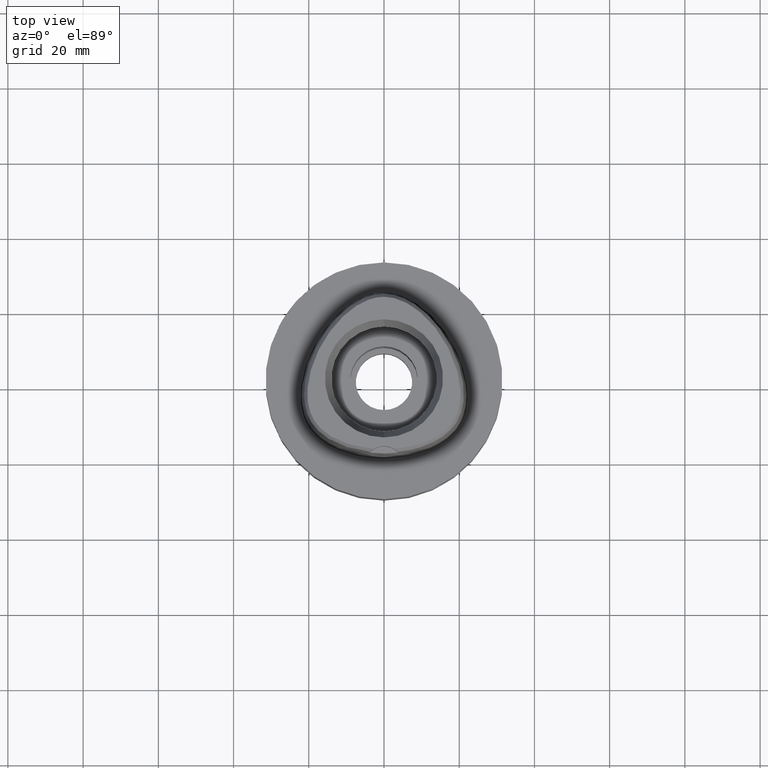
[diagram: clean part render]
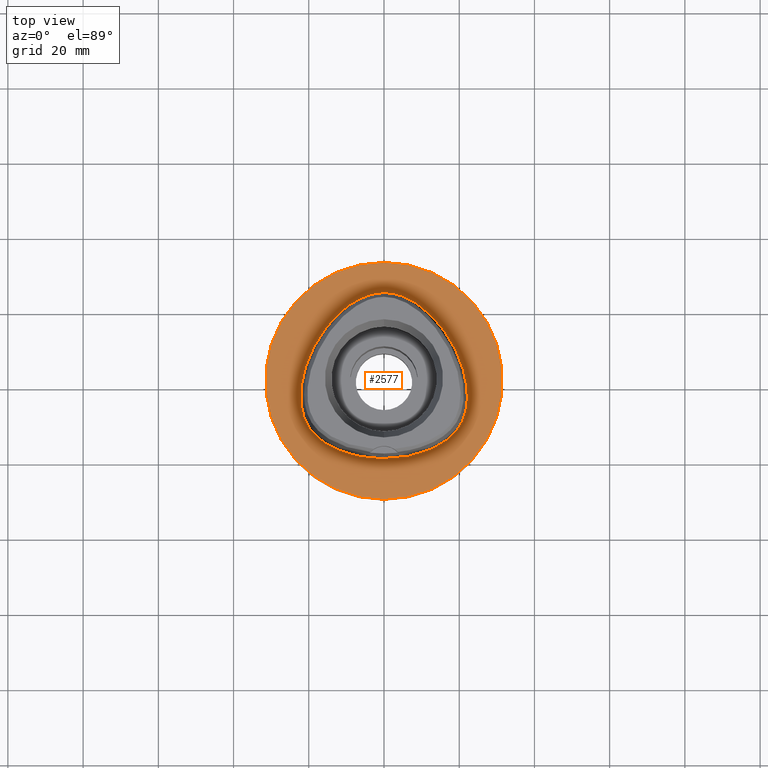
[diagram: same view with one face highlighted and labeled with its STEP entity id]
A machine part, top view. The second image highlights one B-rep face of the part: STEP entity #2577.
In plain terms, the highlighted planar face has unit normal (0, 0, -1).
Its self-contained STEP definition (entity closure, byte-faithful):
#55 = CARTESIAN_POINT ( 'NONE',  ( 0.0000000000000000000, 1.302411870892999789E-14, 0.0000000000000000000 ) ) ;
#181 = CARTESIAN_POINT ( 'NONE',  ( 18.06826692884347096, 10.43171877515928614, -2.002729590510916174E-06 ) ) ;
#318 = CARTESIAN_POINT ( 'NONE',  ( -14.40795638533398559, 15.64093749640449715, 2.214068054329915158E-07 ) ) ;
#375 = CARTESIAN_POINT ( 'NONE',  ( -19.64947365415650538, -12.82525390299093537, 2.214068054329915158E-07 ) ) ;
#428 = DIRECTION ( 'NONE',  ( 0.0000000000000000000, -1.000000000000000000, 0.0000000000000000000 ) ) ;
#458 = VERTEX_POINT ( 'NONE', #1910 ) ;
#468 = CARTESIAN_POINT ( 'NONE',  ( -11.23259756537737530, -18.89324218226976626, 2.214068054329915158E-07 ) ) ;
#575 = CARTESIAN_POINT ( 'NONE',  ( 0.8548392458561070439, 23.47500005007368173, -2.002729590510916174E-06 ) ) ;
#605 = CARTESIAN_POINT ( 'NONE',  ( 19.64947369920874110, -12.82525393574107220, -2.002729590510916174E-06 ) ) ;
#663 = CARTESIAN_POINT ( 'NONE',  ( 4.563152410477000099E-11, 23.47499999999000053, 5.514107688971999147E-14 ) ) ;
#676 = EDGE_CURVE ( 'NONE', #1625, #458, #3446, .T. ) ;
#718 = CARTESIAN_POINT ( 'NONE',  ( -2.564517725819225991, 23.29328124455137683, 2.214068054329915158E-07 ) ) ;
#781 = CARTESIAN_POINT ( 'NONE',  ( -20.74942740356179272, 4.657187498112564938, 2.214068054329915158E-07 ) ) ;
#863 = AXIS2_PLACEMENT_3D ( 'NONE', #5209, #2162, #428 ) ;
#1004 = FACE_OUTER_BOUND ( 'NONE', #4059, .T. ) ;
#1079 = CARTESIAN_POINT ( 'NONE',  ( 21.97832652744225612, -0.2810937412406172009, -2.002729590510916174E-06 ) ) ;
#1192 = CARTESIAN_POINT ( 'NONE',  ( -0.8548392419114434482, 23.47499999446841912, 2.214068054329915158E-07 ) ) ;
#1328 = VERTEX_POINT ( 'NONE', #4364 ) ;
#1416 = CARTESIAN_POINT ( 'NONE',  ( 6.341471028108053076, -20.29812504956459307, -2.002729590510916598E-06 ) ) ;
#1441 = CARTESIAN_POINT ( 'NONE',  ( 7.571159459716524154, 21.31457035584049464, -2.002729590510916174E-06 ) ) ;
#1464 = CARTESIAN_POINT ( 'NONE',  ( -7.554098525921001644E-12, -20.67499999999999716, 5.806466418789999109E-14 ) ) ;
#1490 = EDGE_LOOP ( 'NONE', ( #1591, #5205 ) ) ;
#1491 = CARTESIAN_POINT ( 'NONE',  ( -7.554098525921001644E-12, -20.67499999999999716, 5.806466418789999109E-14 ) ) ;
#1591 = ORIENTED_EDGE ( 'NONE', *, *, #2984, .F. ) ;
#1625 = VERTEX_POINT ( 'NONE', #1464 ) ;
#1791 = DIRECTION ( 'NONE',  ( 0.0000000000000000000, 1.000000000000000000, 0.0000000000000000000 ) ) ;
#1824 = CARTESIAN_POINT ( 'NONE',  ( 5.098437035971377540, 22.52602543730369433, -2.002729590510916174E-06 ) ) ;
#1906 = PLANE ( 'NONE',  #4998 ) ;
#1910 = CARTESIAN_POINT ( 'NONE',  ( 4.563152410477000099E-11, 23.47499999999000053, 5.514107688971999147E-14 ) ) ;
#2051 = CARTESIAN_POINT ( 'NONE',  ( 0.0000000000000000000, 31.50000000000000000, 0.0000000000000000000 ) ) ;
#2132 = VERTEX_POINT ( 'NONE', #2051 ) ;
#2162 = DIRECTION ( 'NONE',  ( 0.0000000000000000000, 0.0000000000000000000, -1.000000000000000000 ) ) ;
#2175 = CARTESIAN_POINT ( 'NONE',  ( -14.67337964144484275, -17.21410155768000649, 2.214068054329915158E-07 ) ) ;
#2353 = CARTESIAN_POINT ( 'NONE',  ( 16.95889175702225771, -15.67838871140038037, -2.002729590510916174E-06 ) ) ;
#2379 = CARTESIAN_POINT ( 'NONE',  ( 22.05732879298833282, -6.847636725902291666, -2.002729590510916174E-06 ) ) ;
#2414 = CARTESIAN_POINT ( 'NONE',  ( -7.571159431546836238, 21.31457030771191796, 2.214068054329915158E-07 ) ) ;
#2442 = CARTESIAN_POINT ( 'NONE',  ( -5.098437015217481161, 22.52602538546624089, 2.214068054329915158E-07 ) ) ;
#2481 = CARTESIAN_POINT ( 'NONE',  ( -21.97832647238913850, -0.2810937509684083291, 2.214068054329915158E-07 ) ) ;
#2512 = CARTESIAN_POINT ( 'NONE',  ( -16.95889172250420174, -15.67838866750525462, 2.214068054329915158E-07 ) ) ;
#2538 = CARTESIAN_POINT ( 'NONE',  ( -21.55524825476815209, -8.996025389043166953, 2.214068054329915158E-07 ) ) ;
#2570 = CARTESIAN_POINT ( 'NONE',  ( -18.56841064739098712, -14.16937987899383344, 2.214068054329915158E-07 ) ) ;
#2577 = ADVANCED_FACE ( 'NONE', ( #1004, #5321 ), #1906, .F. ) ;
#2702 = CARTESIAN_POINT ( 'NONE',  ( 0.0000000000000000000, 1.224646799146999965E-14, 0.0000000000000000000 ) ) ;
#2782 = CARTESIAN_POINT ( 'NONE',  ( 14.40795642805405663, 15.64093753249051133, -2.002729590510916174E-06 ) ) ;
#2984 = EDGE_CURVE ( 'NONE', #458, #1625, #4394, .T. ) ;
#3154 = CARTESIAN_POINT ( 'NONE',  ( 2.564517737247444362, 23.29328129930470581, -2.002729590510916174E-06 ) ) ;
#3207 = CARTESIAN_POINT ( 'NONE',  ( 2.113823676043250277, -20.67500005006454344, -2.002729590510916174E-06 ) ) ;
#3228 = CARTESIAN_POINT ( 'NONE',  ( 10.74572894296161962, 19.17433597604956219, -2.002729590510916174E-06 ) ) ;
#3261 = CIRCLE ( 'NONE', #863, 31.50000000000000000 ) ;
#3354 = CARTESIAN_POINT ( 'NONE',  ( -20.34961798076670902, -11.74885741909873005, 2.214068054329915158E-07 ) ) ;
#3441 = EDGE_CURVE ( 'NONE', #1328, #2132, #3261, .T. ) ;
#3446 = B_SPLINE_CURVE_WITH_KNOTS ( 'NONE', 3,
 ( #1491, #3207, #1416, #4005, #3631, #2353, #5345, #605, #5319, #4437, #4039, #2379, #4931, #1079, #4113, #181, #2782, #3228, #1441, #1824, #3154, #575, #4904 ),
 .UNSPECIFIED., .F., .F.,
 ( 4, 1, 1, 1, 1, 1, 1, 1, 1, 1, 1, 1, 1, 1, 1, 1, 1, 1, 1, 1, 4 ),
 ( 0.0000000000000000000, 0.08333333333339000559, 0.1666666666667000196, 0.2083333333333000081, 0.2500000000000000000, 0.2916666666666999919, 0.3125000000000000000, 0.3333333333333000081, 0.3541666666666000163, 0.3749999999998999689, 0.4166666666666000163, 0.4583333333332000326, 0.4999999999998999689, 0.5833333333331000015, 0.6666666666664999852, 0.7499999999998000488, 0.8333333333329999704, 0.8749999999997000177, 0.9166666666664000651, 0.9583333333329999704, 1.000000000000000000 ),
 .UNSPECIFIED. ) ;
#3478 = CARTESIAN_POINT ( 'NONE',  ( -7.554098525921001644E-12, -20.67499999999999716, 5.806466418789999109E-14 ) ) ;
#3631 = CARTESIAN_POINT ( 'NONE',  ( 14.67337966905185098, -17.21410160614159324, -2.002729590510916174E-06 ) ) ;
#3722 = CARTESIAN_POINT ( 'NONE',  ( -10.74572890701135108, 19.17433593323718100, 2.214068054329915158E-07 ) ) ;
#3755 = CARTESIAN_POINT ( 'NONE',  ( -18.06826688045033791, 10.43171874721780945, 2.214068054329915158E-07 ) ) ;
#3923 = AXIS2_PLACEMENT_3D ( 'NONE', #55, #4454, #1791 ) ;
#4005 = CARTESIAN_POINT ( 'NONE',  ( 11.23259758448029189, -18.89324223480342013, -2.002729590510916174E-06 ) ) ;
#4008 = DIRECTION ( 'NONE',  ( 0.0000000000000000000, 0.0000000000000000000, -1.000000000000000000 ) ) ;
#4039 = CARTESIAN_POINT ( 'NONE',  ( 21.55524830825270399, -8.996025404939377523, -2.002729590510916174E-06 ) ) ;
#4059 = EDGE_LOOP ( 'NONE', ( #4643, #4120 ) ) ;
#4113 = CARTESIAN_POINT ( 'NONE',  ( 20.74942745616694495, 4.657187517070710214, -2.002729590510916174E-06 ) ) ;
#4120 = ORIENTED_EDGE ( 'NONE', *, *, #3441, .F. ) ;
#4237 = EDGE_CURVE ( 'NONE', #2132, #1328, #4383, .T. ) ;
#4242 = CARTESIAN_POINT ( 'NONE',  ( -2.113823672736048209, -20.67499999446930659, 2.214068054329915158E-07 ) ) ;
#4268 = CARTESIAN_POINT ( 'NONE',  ( -20.93173251704490667, -10.60431640399921882, 2.214068054329915158E-07 ) ) ;
#4331 = CARTESIAN_POINT ( 'NONE',  ( -22.24453907299377065, -4.100468750032335130, 2.214068054329915158E-07 ) ) ;
#4360 = CARTESIAN_POINT ( 'NONE',  ( -22.05732873771768965, -6.847636717958458519, 2.214068054329915158E-07 ) ) ;
#4364 = CARTESIAN_POINT ( 'NONE',  ( 0.0000000000000000000, -31.50000000000000000, 0.0000000000000000000 ) ) ;
#4383 = CIRCLE ( 'NONE', #3923, 31.50000000000000000 ) ;
#4394 = B_SPLINE_CURVE_WITH_KNOTS ( 'NONE', 3,
 ( #663, #1192, #718, #2442, #2414, #3722, #318, #3755, #781, #2481, #4331, #4360, #2538, #4268, #3354, #375, #2570, #2512, #2175, #468, #4722, #4242, #3478 ),
 .UNSPECIFIED., .F., .F.,
 ( 4, 1, 1, 1, 1, 1, 1, 1, 1, 1, 1, 1, 1, 1, 1, 1, 1, 1, 1, 1, 4 ),
 ( 0.0000000000000000000, 0.04166666666736999758, 0.08333333333399001175, 0.1250000000005999923, 0.1666666666673000119, 0.2500000000004999889, 0.3333333333337000215, 0.4166666666670000296, 0.5000000000002999823, 0.5416666666668999985, 0.5833333333335000148, 0.6250000000001000311, 0.6458333333333999837, 0.6666666666667999674, 0.6875000000001000311, 0.7083333333333000637, 0.7500000000000000000, 0.7916666666667000474, 0.8333333333332000326, 0.9166666666664999852, 1.000000000000000000 ),
 .UNSPECIFIED. ) ;
#4437 = CARTESIAN_POINT ( 'NONE',  ( 20.93173256793399162, -10.60431642664420337, -2.002729590510916174E-06 ) ) ;
#4439 = DIRECTION ( 'NONE',  ( 0.0000000000000000000, -1.000000000000000000, 0.0000000000000000000 ) ) ;
#4454 = DIRECTION ( 'NONE',  ( 0.0000000000000000000, 0.0000000000000000000, -1.000000000000000000 ) ) ;
#4643 = ORIENTED_EDGE ( 'NONE', *, *, #4237, .F. ) ;
#4722 = CARTESIAN_POINT ( 'NONE',  ( -6.341471018228679313, -20.29812499452939889, 2.214068054329915158E-07 ) ) ;
#4904 = CARTESIAN_POINT ( 'NONE',  ( 4.563152410477000099E-11, 23.47499999999000053, 5.514107688971999147E-14 ) ) ;
#4931 = CARTESIAN_POINT ( 'NONE',  ( 22.24453912876899153, -4.100468749705651561, -2.002729590510916174E-06 ) ) ;
#4998 = AXIS2_PLACEMENT_3D ( 'NONE', #2702, #4008, #4439 ) ;
#5205 = ORIENTED_EDGE ( 'NONE', *, *, #676, .F. ) ;
#5209 = CARTESIAN_POINT ( 'NONE',  ( 0.0000000000000000000, 1.302411870892999789E-14, 0.0000000000000000000 ) ) ;
#5319 = CARTESIAN_POINT ( 'NONE',  ( 20.34961802900803107, -11.74885744695300716, -2.002729590510916174E-06 ) ) ;
#5321 = FACE_BOUND ( 'NONE', #1490, .T. ) ;
#5345 = CARTESIAN_POINT ( 'NONE',  ( 18.56841068788789428, -14.16937991735913016, -2.002729590510916174E-06 ) ) ;